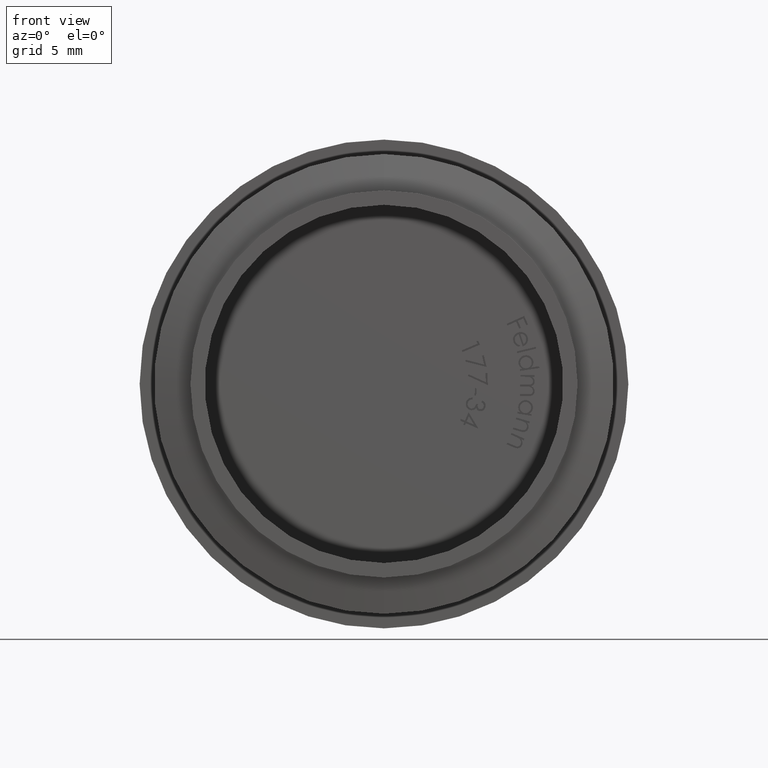
[diagram: clean part render]
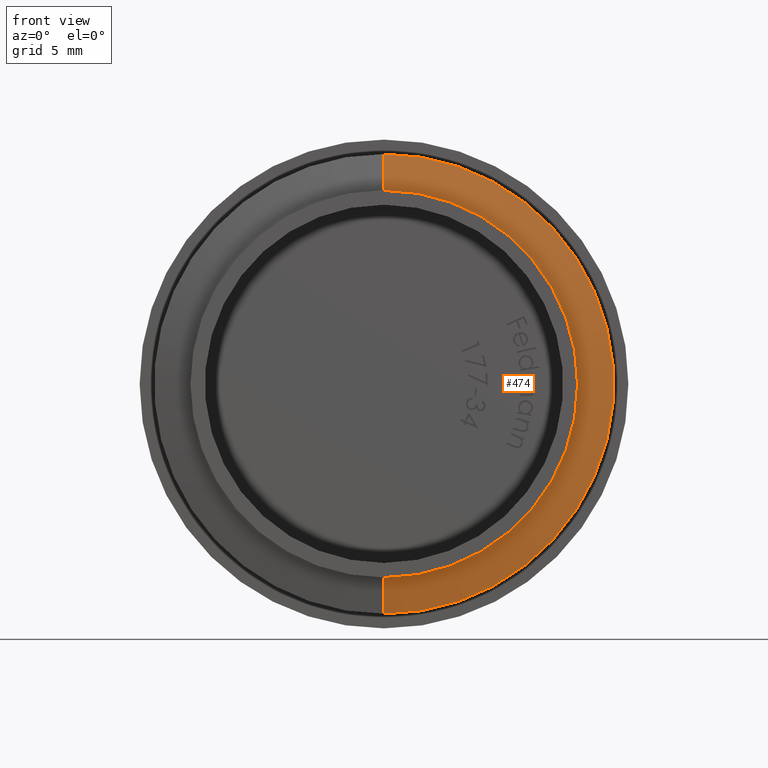
[diagram: same view with one face highlighted and labeled with its STEP entity id]
A machine part, front view. The second image highlights one B-rep face of the part: STEP entity #474.
In plain terms, the highlighted conical surface has half-angle 78.69 deg.
Its self-contained STEP definition (entity closure, byte-faithful):
#119 = FACE_OUTER_BOUND ( 'NONE', #8022, .T. ) ;
#213 = LINE ( 'NONE', #2490, #3912 ) ;
#474 = ADVANCED_FACE ( 'NONE', ( #119 ), #7096, .T. ) ;
#636 = CIRCLE ( 'NONE', #8844, 15.85000000000000000 ) ;
#683 = ORIENTED_EDGE ( 'NONE', *, *, #7364, .T. ) ;
#709 = CARTESIAN_POINT ( 'NONE',  ( 0.0000000000000000000, -9.000000000000001800, 0.0000000000000000000 ) ) ;
#802 = CARTESIAN_POINT ( 'NONE',  ( 0.0000000000000000000, -9.500000000000001800, 13.35000000000000000 ) ) ;
#1466 = DIRECTION ( 'NONE',  ( 0.0000000000000000000, 0.0000000000000000000, 1.000000000000000000 ) ) ;
#2314 = CARTESIAN_POINT ( 'NONE',  ( 1.941065176648554700E-015, -9.000000000000001800, -15.85000000000000000 ) ) ;
#2361 = CARTESIAN_POINT ( 'NONE',  ( 0.0000000000000000000, -9.500000000000001800, 13.35000000000000000 ) ) ;
#2490 = CARTESIAN_POINT ( 'NONE',  ( 1.634903476861716400E-015, -9.500000000000001800, -13.35000000000000000 ) ) ;
#2690 = ORIENTED_EDGE ( 'NONE', *, *, #6233, .T. ) ;
#3100 = DIRECTION ( 'NONE',  ( 0.0000000000000000000, 0.1961161351381842400, 0.9805806756909202200 ) ) ;
#3152 = CARTESIAN_POINT ( 'NONE',  ( 0.0000000000000000000, -9.000000000000001800, 15.85000000000000000 ) ) ;
#3154 = DIRECTION ( 'NONE',  ( -0.0000000000000000000, 1.000000000000000000, -0.0000000000000000000 ) ) ;
#3228 = DIRECTION ( 'NONE',  ( 1.200864985790634400E-016, 0.1961161351381842400, -0.9805806756909202200 ) ) ;
#3309 = VERTEX_POINT ( 'NONE', #4449 ) ;
#3699 = ORIENTED_EDGE ( 'NONE', *, *, #4909, .F. ) ;
#3912 = VECTOR ( 'NONE', #3228, 999.9999999999998900 ) ;
#3933 = AXIS2_PLACEMENT_3D ( 'NONE', #4007, #3993, #4304 ) ;
#3993 = DIRECTION ( 'NONE',  ( -0.0000000000000000000, 1.000000000000000000, -0.0000000000000000000 ) ) ;
#4007 = CARTESIAN_POINT ( 'NONE',  ( 0.0000000000000000000, -9.500000000000001800, 0.0000000000000000000 ) ) ;
#4304 = DIRECTION ( 'NONE',  ( 0.0000000000000000000, 0.0000000000000000000, 1.000000000000000000 ) ) ;
#4449 = CARTESIAN_POINT ( 'NONE',  ( 1.787984326755135800E-015, -9.500000000000001800, -13.35000000000000000 ) ) ;
#4518 = AXIS2_PLACEMENT_3D ( 'NONE', #7367, #3154, #8009 ) ;
#4827 = CIRCLE ( 'NONE', #4518, 13.35000000000000000 ) ;
#4909 = EDGE_CURVE ( 'NONE', #6663, #7910, #6087, .T. ) ;
#5846 = DIRECTION ( 'NONE',  ( -0.0000000000000000000, 1.000000000000000000, -0.0000000000000000000 ) ) ;
#6024 = ORIENTED_EDGE ( 'NONE', *, *, #6871, .F. ) ;
#6087 = LINE ( 'NONE', #2361, #6282 ) ;
#6233 = EDGE_CURVE ( 'NONE', #6663, #3309, #4827, .T. ) ;
#6282 = VECTOR ( 'NONE', #3100, 999.9999999999998900 ) ;
#6663 = VERTEX_POINT ( 'NONE', #802 ) ;
#6871 = EDGE_CURVE ( 'NONE', #7910, #7800, #636, .T. ) ;
#7096 = CONICAL_SURFACE ( 'NONE', #3933, 13.35000000000000000, 1.373400766945015700 ) ;
#7364 = EDGE_CURVE ( 'NONE', #3309, #7800, #213, .T. ) ;
#7367 = CARTESIAN_POINT ( 'NONE',  ( 0.0000000000000000000, -9.500000000000001800, 0.0000000000000000000 ) ) ;
#7800 = VERTEX_POINT ( 'NONE', #2314 ) ;
#7910 = VERTEX_POINT ( 'NONE', #3152 ) ;
#8009 = DIRECTION ( 'NONE',  ( 0.0000000000000000000, 0.0000000000000000000, 1.000000000000000000 ) ) ;
#8022 = EDGE_LOOP ( 'NONE', ( #2690, #683, #6024, #3699 ) ) ;
#8844 = AXIS2_PLACEMENT_3D ( 'NONE', #709, #5846, #1466 ) ;